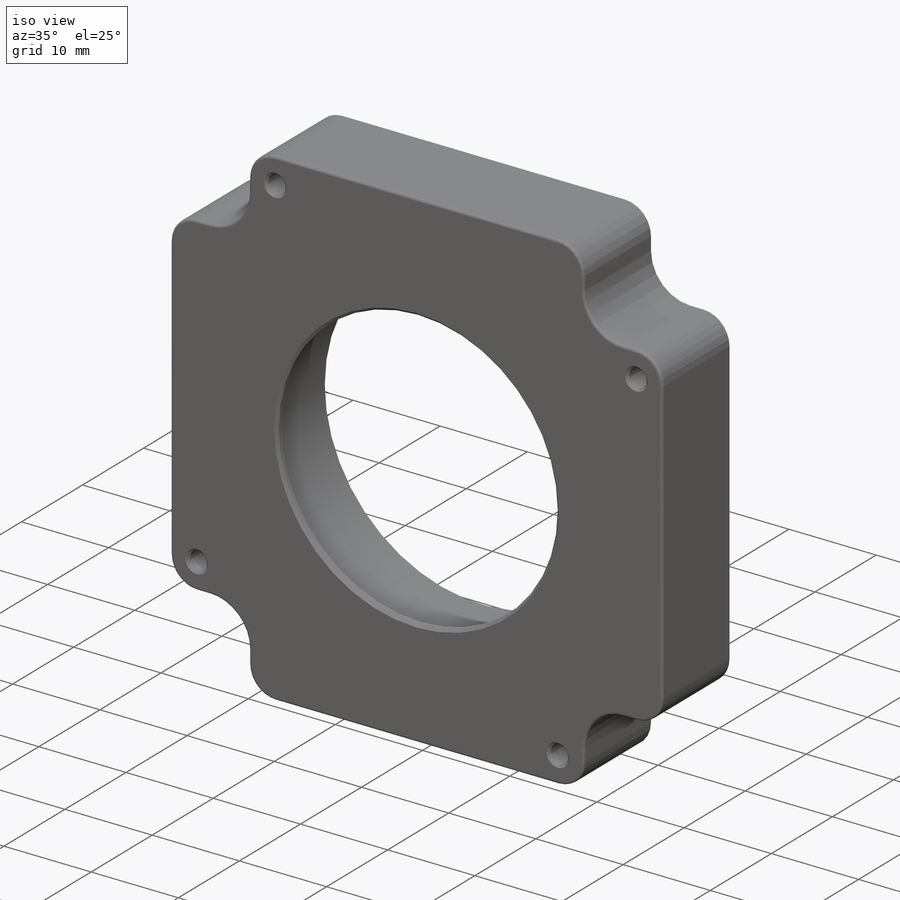
[diagram: iso view]
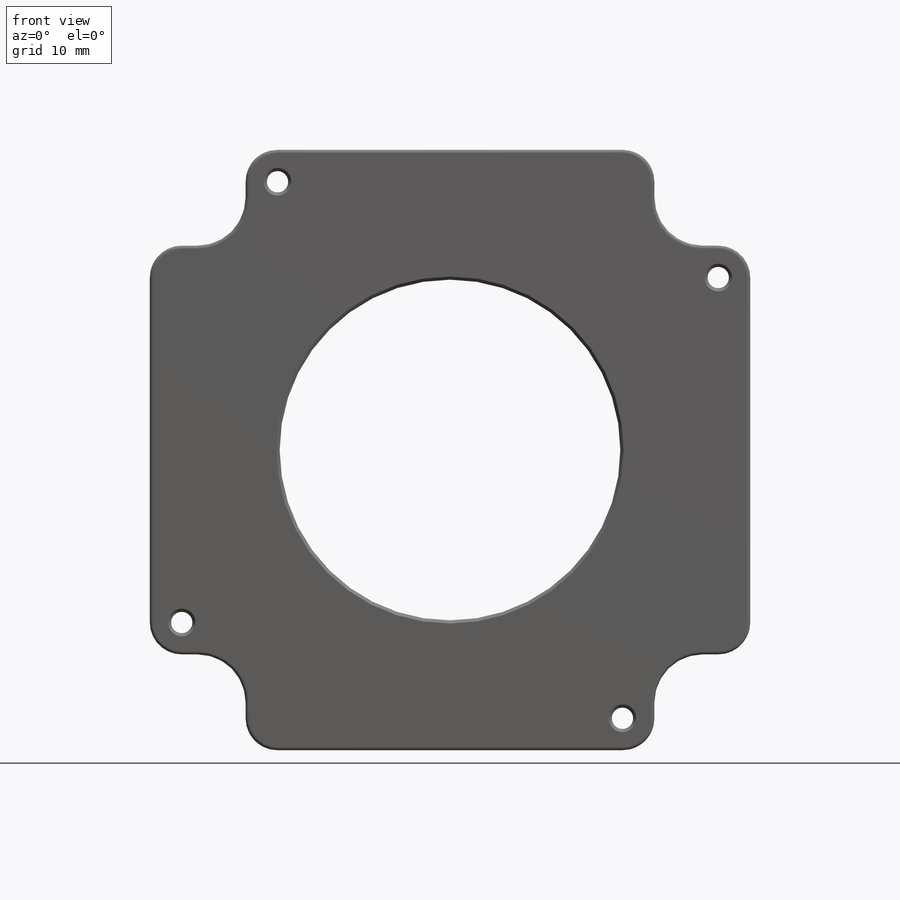
[diagram: front view]
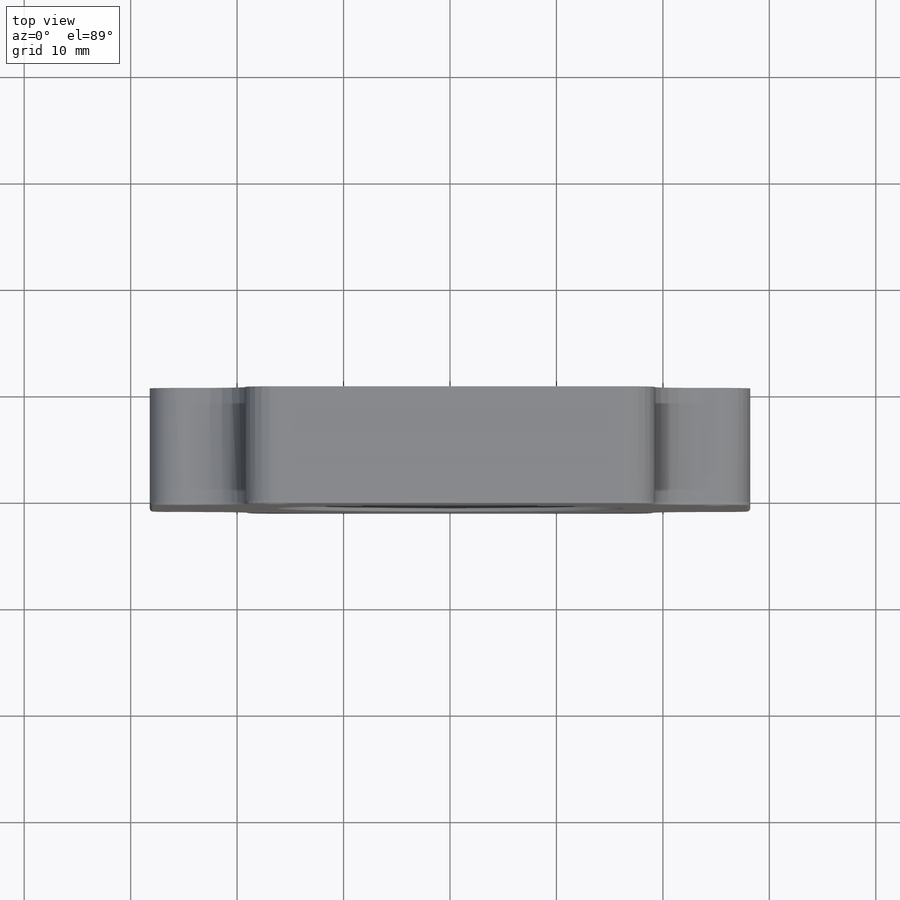
[diagram: top view]
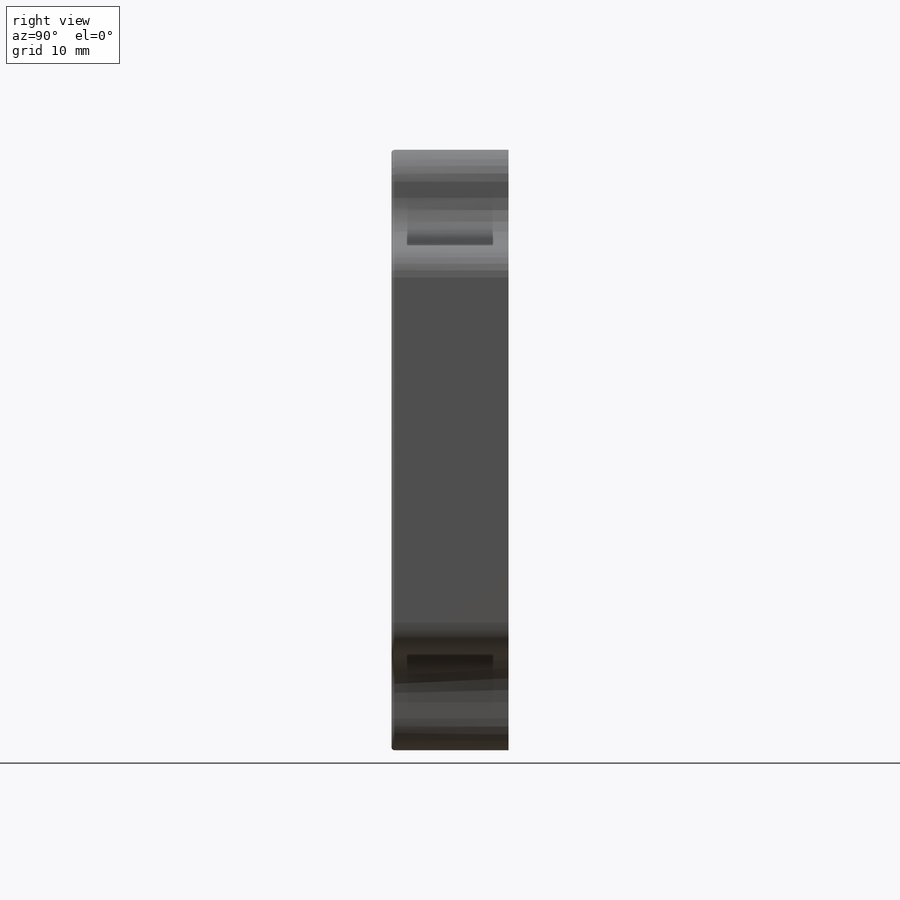
[diagram: right view]
SOLIDWORKS PART (.sldprt)
format: sldprt  version: not decoded by parser v0  size: 388,608 bytes
history: native  units: mm
features: sketch x5, cut_extrude x4, material x1, extrude x1, fillet x1, chamfer x1 (+11 scaffold rows collapsed)
feature tree (24):
  scaffold x11  (default folders/planes/origin — collapsed)
  material  "1060 Alloy"
  sketch  "Sketch1"  dims[c1.D3=6.0mm c2.D3=32.0mm c2.D1=56.4mm c2.D2=47.4mm]
  extrude  "Boss-Extrude1"  Depth=11mm
  sketch  "Sketch2"  dims[D1=52.2mm D2=40.0mm]
  cut_extrude  "Cut-Extrude1"  Depth=8.5mm
  sketch  "Sketch3"  dims[D1=36.0mm]
  cut_extrude  "Cut-Extrude2"  Depth=10mm
  fillet  "Fillet1"  Radius=0.3mm
  chamfer  "Chamfer1"  Distance=0.3mm Angle=45deg
  sketch  "Sketch4"  dims[D1=8.0mm]
  cut_extrude  "Cut-Extrude3"  [1 undecoded]
  sketch  "Sketch5"  dims[D1=12.0mm D2=3.0mm D3=27.0mm]
  cut_extrude  "Cut-Extrude5"  Depth=10mm
decode coverage: 11 of 12 modeling features carry decoded parameters
note: 1 parameter value undecoded
note: suppression state not decoded; provenance and decode notes live in map.json
